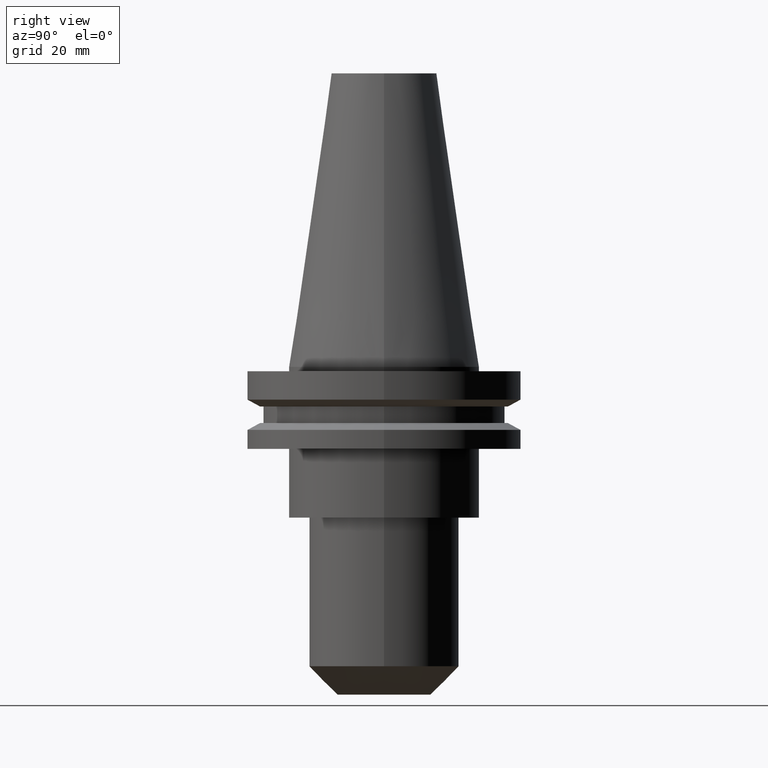
[diagram: clean part render]
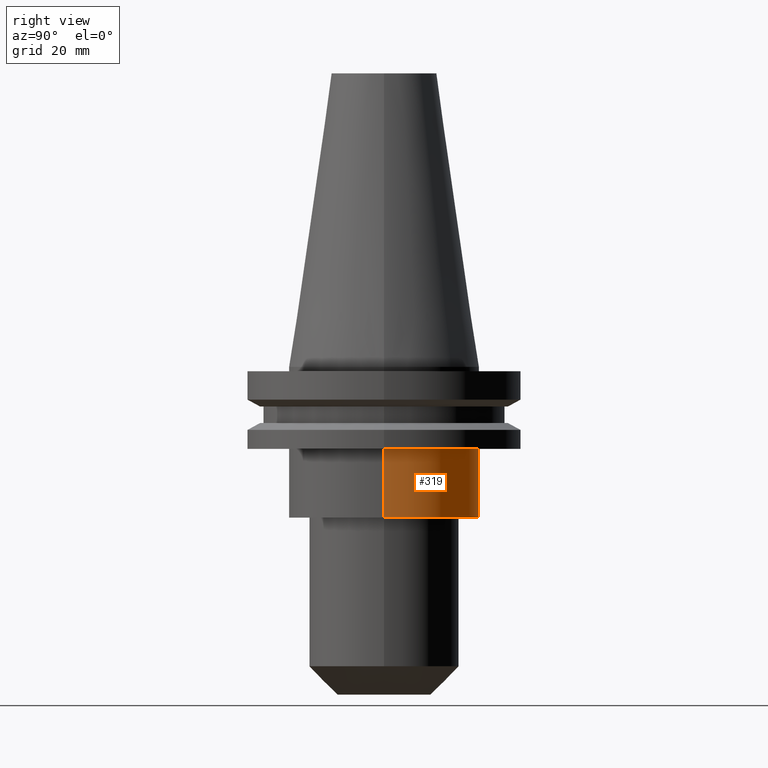
[diagram: same view with one face highlighted and labeled with its STEP entity id]
A machine part, right view. The second image highlights one B-rep face of the part: STEP entity #319.
In plain terms, the highlighted cylindrical surface (partial cylindrical patch) has radius 22.225 mm, axis along (-0, -0, 1).
Its self-contained STEP definition (entity closure, byte-faithful):
#13 = CIRCLE ( 'NONE', #500, 22.22499999999999787 ) ;
#48 = FACE_OUTER_BOUND ( 'NONE', #485, .T. ) ;
#122 = DIRECTION ( 'NONE',  ( -0.000000000000000000, -0.000000000000000000, 1.000000000000000000 ) ) ;
#135 = EDGE_CURVE ( 'NONE', #280, #501, #13, .T. ) ;
#212 = ORIENTED_EDGE ( 'NONE', *, *, #300, .F. ) ;
#214 = DIRECTION ( 'NONE',  ( -0.000000000000000000, -0.000000000000000000, 1.000000000000000000 ) ) ;
#221 = CARTESIAN_POINT ( 'NONE',  ( 0.000000000000000000, 0.000000000000000000, -35.04999999999999716 ) ) ;
#233 = VERTEX_POINT ( 'NONE', #816 ) ;
#246 = CIRCLE ( 'NONE', #511, 22.22500000000000142 ) ;
#249 = ORIENTED_EDGE ( 'NONE', *, *, #261, .F. ) ;
#261 = EDGE_CURVE ( 'NONE', #280, #233, #365, .T. ) ;
#280 = VERTEX_POINT ( 'NONE', #644 ) ;
#300 = EDGE_CURVE ( 'NONE', #233, #761, #246, .T. ) ;
#319 = ADVANCED_FACE ( 'NONE', ( #48 ), #649, .T. ) ;
#338 = LINE ( 'NONE', #459, #782 ) ;
#350 = DIRECTION ( 'NONE',  ( -0.000000000000000000, -0.000000000000000000, 1.000000000000000000 ) ) ;
#365 = LINE ( 'NONE', #809, #760 ) ;
#369 = DIRECTION ( 'NONE',  ( -0.000000000000000000, -0.000000000000000000, 1.000000000000000000 ) ) ;
#400 = AXIS2_PLACEMENT_3D ( 'NONE', #503, #369, #831 ) ;
#455 = EDGE_CURVE ( 'NONE', #501, #761, #338, .T. ) ;
#459 = CARTESIAN_POINT ( 'NONE',  ( -22.22500000000000142, 2.721777511104992849E-15, 68.25000000000000000 ) ) ;
#485 = EDGE_LOOP ( 'NONE', ( #765, #626, #212, #249 ) ) ;
#500 = AXIS2_PLACEMENT_3D ( 'NONE', #221, #350, #617 ) ;
#501 = VERTEX_POINT ( 'NONE', #589 ) ;
#503 = CARTESIAN_POINT ( 'NONE',  ( 0.000000000000000000, 0.000000000000000000, 68.25000000000000000 ) ) ;
#511 = AXIS2_PLACEMENT_3D ( 'NONE', #843, #122, #654 ) ;
#535 = DIRECTION ( 'NONE',  ( -0.000000000000000000, -0.000000000000000000, 1.000000000000000000 ) ) ;
#589 = CARTESIAN_POINT ( 'NONE',  ( -22.22499999999999787, 2.721777511104992454E-15, -35.04999999999999716 ) ) ;
#617 = DIRECTION ( 'NONE',  ( 1.000000000000000000, 0.000000000000000000, 0.000000000000000000 ) ) ;
#626 = ORIENTED_EDGE ( 'NONE', *, *, #455, .T. ) ;
#644 = CARTESIAN_POINT ( 'NONE',  ( 22.22499999999999787, 0.000000000000000000, -35.04999999999999716 ) ) ;
#649 = CYLINDRICAL_SURFACE ( 'NONE', #400, 22.22500000000000142 ) ;
#654 = DIRECTION ( 'NONE',  ( 1.000000000000000000, 0.000000000000000000, 0.000000000000000000 ) ) ;
#760 = VECTOR ( 'NONE', #214, 1000.000000000000000 ) ;
#761 = VERTEX_POINT ( 'NONE', #833 ) ;
#765 = ORIENTED_EDGE ( 'NONE', *, *, #135, .T. ) ;
#782 = VECTOR ( 'NONE', #535, 1000.000000000000000 ) ;
#809 = CARTESIAN_POINT ( 'NONE',  ( 22.22500000000000142, 0.000000000000000000, 68.25000000000000000 ) ) ;
#816 = CARTESIAN_POINT ( 'NONE',  ( 22.22500000000000142, 0.000000000000000000, -19.04999999999999716 ) ) ;
#831 = DIRECTION ( 'NONE',  ( 1.000000000000000000, 0.000000000000000000, 0.000000000000000000 ) ) ;
#833 = CARTESIAN_POINT ( 'NONE',  ( -22.22500000000000142, 2.721777511104992849E-15, -19.04999999999999716 ) ) ;
#843 = CARTESIAN_POINT ( 'NONE',  ( 0.000000000000000000, 0.000000000000000000, -19.04999999999999716 ) ) ;